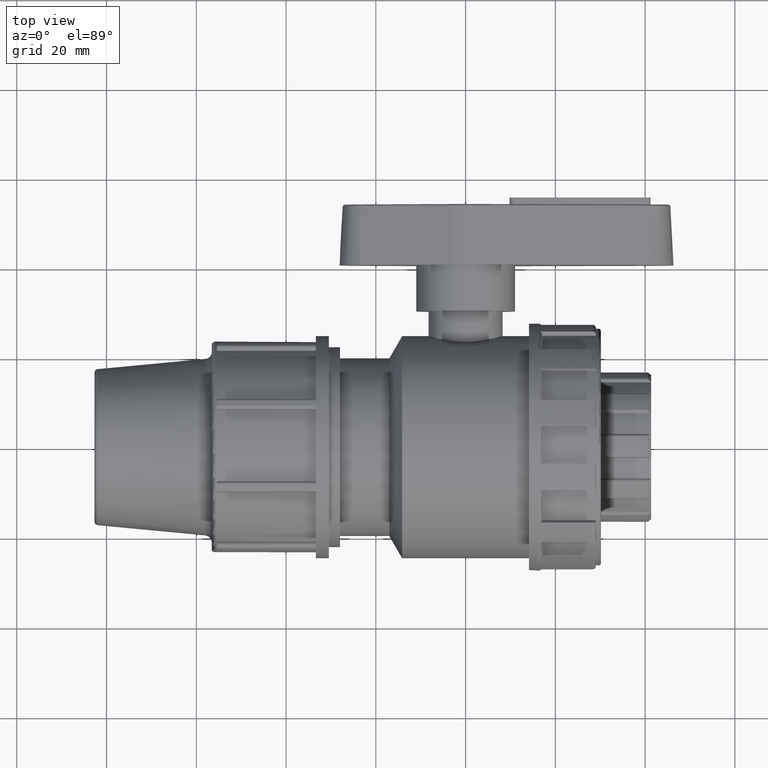
[diagram: clean part render]
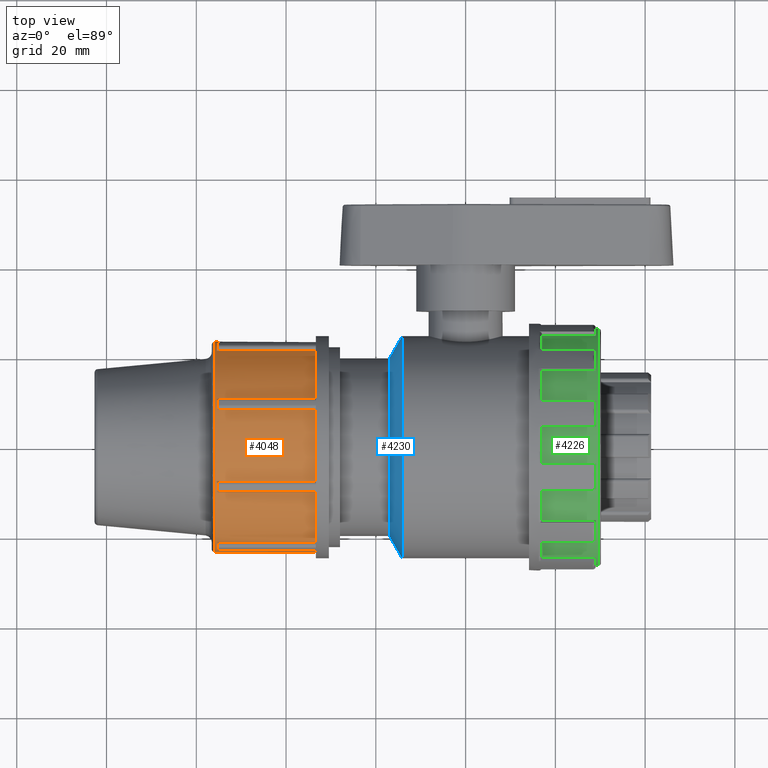
[diagram: same view with three faces highlighted in distinct colors, each labeled with its STEP entity id]
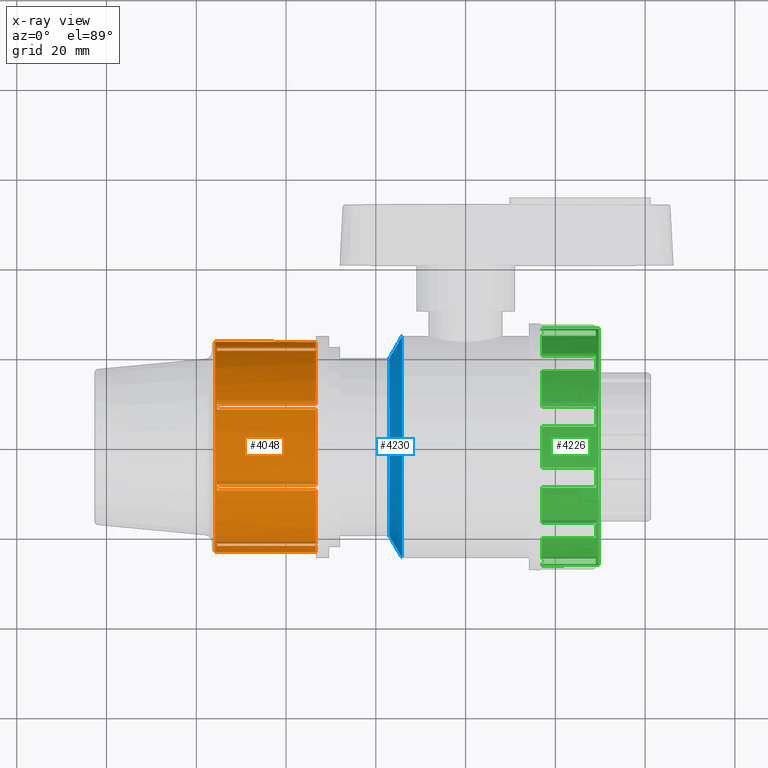
[diagram: x-ray of the same camera — body ghosted, the three highlighted faces saturated]
A machine part, top view with three faces highlighted in distinct colors.
The next image is the same camera in x-ray (body ghosted, the three faces saturated) — at least one of them is partly hidden behind the body in this view.
Their STEP definitions:

[orange] entity #4048 — the highlighted cylindrical surface (bore or boss wall) has radius 23.5125 mm, axis along (1, 0, 0).
#74=FACE_BOUND('',#645,.T.);
#396=FACE_OUTER_BOUND('',#644,.T.);
#644=EDGE_LOOP('',(#2930,#2931,#2932,#2933,#2934,#2935,#2936,#2937,#2938,
#2939,#2940,#2941,#2942,#2943,#2944,#2945,#2946,#2947,#2948,#2949,#2950,
#2951,#2952,#2953,#2954,#2955,#2956,#2957,#2958,#2959,#2960,#2961));
#645=EDGE_LOOP('',(#2962));
#875=LINE('',#6062,#1119);
#879=LINE('',#6122,#1123);
#885=LINE('',#6187,#1129);
#889=LINE('',#6247,#1133);
#895=LINE('',#6312,#1139);
#899=LINE('',#6372,#1143);
#905=LINE('',#6437,#1149);
#909=LINE('',#6497,#1153);
#915=LINE('',#6562,#1159);
#919=LINE('',#6622,#1163);
#925=LINE('',#6687,#1169);
#929=LINE('',#6747,#1173);
#935=LINE('',#6812,#1179);
#939=LINE('',#6872,#1183);
#941=LINE('',#6899,#1185);
#942=LINE('',#6902,#1186);
#1119=VECTOR('',#4761,22.04);
#1123=VECTOR('',#4773,22.04);
#1129=VECTOR('',#4793,22.04);
#1133=VECTOR('',#4805,22.04);
#1139=VECTOR('',#4825,22.04);
#1143=VECTOR('',#4837,22.04);
#1149=VECTOR('',#4857,22.04);
#1153=VECTOR('',#4869,22.04);
#1159=VECTOR('',#4889,22.04);
#1163=VECTOR('',#4901,22.04);
#1169=VECTOR('',#4921,22.04);
#1173=VECTOR('',#4933,22.04);
#1179=VECTOR('',#4953,22.04);
#1183=VECTOR('',#4965,22.04);
#1185=VECTOR('',#5013,22.04);
#1186=VECTOR('',#5016,22.04);
#1360=CIRCLE('',#4246,23.5125);
#1365=CIRCLE('',#4255,23.5125);
#1371=CIRCLE('',#4266,23.5125);
#1377=CIRCLE('',#4277,23.5125);
#1383=CIRCLE('',#4288,23.5125);
#1389=CIRCLE('',#4299,23.5125);
#1395=CIRCLE('',#4310,23.5125);
#1400=CIRCLE('',#4320,23.5125);
#1402=CIRCLE('',#4323,23.5125);
#1404=CIRCLE('',#4326,23.5125);
#1406=CIRCLE('',#4329,23.5125);
#1408=CIRCLE('',#4332,23.5125);
#1410=CIRCLE('',#4335,23.5125);
#1412=CIRCLE('',#4338,23.5125);
#1414=CIRCLE('',#4341,23.5125);
#1415=CIRCLE('',#4342,23.5125);
#1416=CIRCLE('',#4343,23.5125);
#1630=VERTEX_POINT('',#6039);
#1631=VERTEX_POINT('',#6041);
#1634=VERTEX_POINT('',#6060);
#1641=VERTEX_POINT('',#6119);
#1642=VERTEX_POINT('',#6121);
#1645=VERTEX_POINT('',#6140);
#1650=VERTEX_POINT('',#6185);
#1657=VERTEX_POINT('',#6244);
#1658=VERTEX_POINT('',#6246);
#1661=VERTEX_POINT('',#6265);
#1666=VERTEX_POINT('',#6310);
#1673=VERTEX_POINT('',#6369);
#1674=VERTEX_POINT('',#6371);
#1677=VERTEX_POINT('',#6390);
#1682=VERTEX_POINT('',#6435);
#1689=VERTEX_POINT('',#6494);
#1690=VERTEX_POINT('',#6496);
#1693=VERTEX_POINT('',#6515);
#1698=VERTEX_POINT('',#6560);
#1705=VERTEX_POINT('',#6619);
#1706=VERTEX_POINT('',#6621);
#1709=VERTEX_POINT('',#6640);
#1714=VERTEX_POINT('',#6685);
#1721=VERTEX_POINT('',#6744);
#1722=VERTEX_POINT('',#6746);
#1725=VERTEX_POINT('',#6765);
#1730=VERTEX_POINT('',#6810);
#1737=VERTEX_POINT('',#6869);
#1738=VERTEX_POINT('',#6871);
#1739=VERTEX_POINT('',#6896);
#1740=VERTEX_POINT('',#6898);
#1741=VERTEX_POINT('',#6900);
#1742=VERTEX_POINT('',#6903);
#2045=EDGE_CURVE('',#1631,#1630,#1360,.T.);
#2050=EDGE_CURVE('',#1630,#1634,#875,.T.);
#2059=EDGE_CURVE('',#1641,#1642,#879,.T.);
#2064=EDGE_CURVE('',#1641,#1645,#1365,.T.);
#2072=EDGE_CURVE('',#1645,#1650,#885,.T.);
#2081=EDGE_CURVE('',#1657,#1658,#889,.T.);
#2086=EDGE_CURVE('',#1657,#1661,#1371,.T.);
#2094=EDGE_CURVE('',#1661,#1666,#895,.T.);
#2103=EDGE_CURVE('',#1673,#1674,#899,.T.);
#2108=EDGE_CURVE('',#1673,#1677,#1377,.T.);
#2116=EDGE_CURVE('',#1677,#1682,#905,.T.);
#2125=EDGE_CURVE('',#1689,#1690,#909,.T.);
#2130=EDGE_CURVE('',#1689,#1693,#1383,.T.);
#2138=EDGE_CURVE('',#1693,#1698,#915,.T.);
#2147=EDGE_CURVE('',#1705,#1706,#919,.T.);
#2152=EDGE_CURVE('',#1705,#1709,#1389,.T.);
#2160=EDGE_CURVE('',#1709,#1714,#925,.T.);
#2169=EDGE_CURVE('',#1721,#1722,#929,.T.);
#2174=EDGE_CURVE('',#1721,#1725,#1395,.T.);
#2182=EDGE_CURVE('',#1725,#1730,#935,.T.);
#2191=EDGE_CURVE('',#1737,#1738,#939,.T.);
#2193=EDGE_CURVE('',#1634,#1642,#1400,.T.);
#2195=EDGE_CURVE('',#1650,#1658,#1402,.T.);
#2197=EDGE_CURVE('',#1666,#1674,#1404,.T.);
#2199=EDGE_CURVE('',#1682,#1690,#1406,.T.);
#2201=EDGE_CURVE('',#1698,#1706,#1408,.T.);
#2203=EDGE_CURVE('',#1714,#1722,#1410,.T.);
#2205=EDGE_CURVE('',#1730,#1738,#1412,.T.);
#2207=EDGE_CURVE('',#1737,#1739,#1414,.T.);
#2208=EDGE_CURVE('',#1739,#1740,#941,.T.);
#2209=EDGE_CURVE('',#1740,#1741,#1415,.T.);
#2210=EDGE_CURVE('',#1631,#1741,#942,.T.);
#2211=EDGE_CURVE('',#1742,#1742,#1416,.T.);
#2930=ORIENTED_EDGE('',*,*,#2064,.T.);
#2931=ORIENTED_EDGE('',*,*,#2072,.T.);
#2932=ORIENTED_EDGE('',*,*,#2195,.T.);
#2933=ORIENTED_EDGE('',*,*,#2081,.F.);
#2934=ORIENTED_EDGE('',*,*,#2086,.T.);
#2935=ORIENTED_EDGE('',*,*,#2094,.T.);
#2936=ORIENTED_EDGE('',*,*,#2197,.T.);
#2937=ORIENTED_EDGE('',*,*,#2103,.F.);
#2938=ORIENTED_EDGE('',*,*,#2108,.T.);
#2939=ORIENTED_EDGE('',*,*,#2116,.T.);
#2940=ORIENTED_EDGE('',*,*,#2199,.T.);
#2941=ORIENTED_EDGE('',*,*,#2125,.F.);
#2942=ORIENTED_EDGE('',*,*,#2130,.T.);
#2943=ORIENTED_EDGE('',*,*,#2138,.T.);
#2944=ORIENTED_EDGE('',*,*,#2201,.T.);
#2945=ORIENTED_EDGE('',*,*,#2147,.F.);
#2946=ORIENTED_EDGE('',*,*,#2152,.T.);
#2947=ORIENTED_EDGE('',*,*,#2160,.T.);
#2948=ORIENTED_EDGE('',*,*,#2203,.T.);
#2949=ORIENTED_EDGE('',*,*,#2169,.F.);
#2950=ORIENTED_EDGE('',*,*,#2174,.T.);
#2951=ORIENTED_EDGE('',*,*,#2182,.T.);
#2952=ORIENTED_EDGE('',*,*,#2205,.T.);
#2953=ORIENTED_EDGE('',*,*,#2191,.F.);
#2954=ORIENTED_EDGE('',*,*,#2207,.T.);
#2955=ORIENTED_EDGE('',*,*,#2208,.T.);
#2956=ORIENTED_EDGE('',*,*,#2209,.T.);
#2957=ORIENTED_EDGE('',*,*,#2210,.F.);
#2958=ORIENTED_EDGE('',*,*,#2045,.T.);
#2959=ORIENTED_EDGE('',*,*,#2050,.T.);
#2960=ORIENTED_EDGE('',*,*,#2193,.T.);
#2961=ORIENTED_EDGE('',*,*,#2059,.F.);
#2962=ORIENTED_EDGE('',*,*,#2211,.F.);
#3932=CYLINDRICAL_SURFACE('',#4340,23.5125);
#4048=ADVANCED_FACE('',(#396,#74),#3932,.T.);
#4246=AXIS2_PLACEMENT_3D('',#6042,#4753,#4754);
#4255=AXIS2_PLACEMENT_3D('',#6142,#4780,#4781);
#4266=AXIS2_PLACEMENT_3D('',#6267,#4812,#4813);
#4277=AXIS2_PLACEMENT_3D('',#6392,#4844,#4845);
#4288=AXIS2_PLACEMENT_3D('',#6517,#4876,#4877);
#4299=AXIS2_PLACEMENT_3D('',#6642,#4908,#4909);
#4310=AXIS2_PLACEMENT_3D('',#6767,#4940,#4941);
#4320=AXIS2_PLACEMENT_3D('',#6875,#4969,#4970);
#4323=AXIS2_PLACEMENT_3D('',#6878,#4975,#4976);
#4326=AXIS2_PLACEMENT_3D('',#6881,#4981,#4982);
#4329=AXIS2_PLACEMENT_3D('',#6884,#4987,#4988);
#4332=AXIS2_PLACEMENT_3D('',#6887,#4993,#4994);
#4335=AXIS2_PLACEMENT_3D('',#6890,#4999,#5000);
#4338=AXIS2_PLACEMENT_3D('',#6893,#5005,#5006);
#4340=AXIS2_PLACEMENT_3D('',#6895,#5009,#5010);
#4341=AXIS2_PLACEMENT_3D('',#6897,#5011,#5012);
#4342=AXIS2_PLACEMENT_3D('',#6901,#5014,#5015);
#4343=AXIS2_PLACEMENT_3D('',#6904,#5017,#5018);
#4753=DIRECTION('center_axis',(-1.,0.,0.));
#4754=DIRECTION('ref_axis',(0.,0.,-1.));
#4761=DIRECTION('',(1.,0.,0.));
#4773=DIRECTION('',(1.,0.,0.));
#4780=DIRECTION('center_axis',(-1.,0.,0.));
#4781=DIRECTION('ref_axis',(0.,0.,-1.));
#4793=DIRECTION('',(1.,0.,0.));
#4805=DIRECTION('',(1.,0.,0.));
#4812=DIRECTION('center_axis',(-1.,0.,0.));
#4813=DIRECTION('ref_axis',(0.,0.,-1.));
#4825=DIRECTION('',(1.,0.,0.));
#4837=DIRECTION('',(1.,0.,0.));
#4844=DIRECTION('center_axis',(-1.,0.,0.));
#4845=DIRECTION('ref_axis',(0.,0.,-1.));
#4857=DIRECTION('',(1.,0.,0.));
#4869=DIRECTION('',(1.,0.,0.));
#4876=DIRECTION('center_axis',(-1.,0.,0.));
#4877=DIRECTION('ref_axis',(0.,0.,-1.));
#4889=DIRECTION('',(1.,0.,0.));
#4901=DIRECTION('',(1.,0.,0.));
#4908=DIRECTION('center_axis',(-1.,0.,0.));
#4909=DIRECTION('ref_axis',(0.,0.,-1.));
#4921=DIRECTION('',(1.,0.,0.));
#4933=DIRECTION('',(1.,0.,0.));
#4940=DIRECTION('center_axis',(-1.,0.,0.));
#4941=DIRECTION('ref_axis',(0.,0.,-1.));
#4953=DIRECTION('',(1.,0.,0.));
#4965=DIRECTION('',(1.,0.,0.));
#4969=DIRECTION('center_axis',(-1.,0.,0.));
#4970=DIRECTION('ref_axis',(0.,-0.707106781186548,-0.707106781186547));
#4975=DIRECTION('center_axis',(-1.,0.,0.));
#4976=DIRECTION('ref_axis',(0.,-1.,9.44368335672648E-17));
#4981=DIRECTION('center_axis',(-1.,0.,0.));
#4982=DIRECTION('ref_axis',(0.,-0.707106781186547,0.707106781186548));
#4987=DIRECTION('center_axis',(-1.,0.,0.));
#4988=DIRECTION('ref_axis',(0.,9.44368335672648E-17,1.));
#4993=DIRECTION('center_axis',(-1.,0.,0.));
#4994=DIRECTION('ref_axis',(0.,0.707106781186547,0.707106781186547));
#4999=DIRECTION('center_axis',(-1.,0.,0.));
#5000=DIRECTION('ref_axis',(0.,1.,0.));
#5005=DIRECTION('center_axis',(-1.,0.,0.));
#5006=DIRECTION('ref_axis',(0.,0.707106781186547,-0.707106781186547));
#5009=DIRECTION('center_axis',(1.,0.,0.));
#5010=DIRECTION('ref_axis',(0.,0.,-1.));
#5011=DIRECTION('center_axis',(-1.,0.,0.));
#5012=DIRECTION('ref_axis',(0.,0.,-1.));
#5013=DIRECTION('',(1.,0.,0.));
#5014=DIRECTION('center_axis',(-1.,0.,0.));
#5015=DIRECTION('ref_axis',(0.,0.,-1.));
#5016=DIRECTION('',(1.,0.,0.));
#5017=DIRECTION('center_axis',(-1.,0.,0.));
#5018=DIRECTION('ref_axis',(0.,0.940721029240066,0.339181286549703));
#6039=CARTESIAN_POINT('',(-55.4066666666667,21.2794616037402,-10.0011084438149));
#6041=CARTESIAN_POINT('',(-55.4066666666667,22.118703200007,-7.97500000000011));
#6042=CARTESIAN_POINT('Origin',(-55.4066666666667,0.,0.));
#6060=CARTESIAN_POINT('',(-33.3666666666667,21.2794616037402,-10.0011084438149));
#6062=CARTESIAN_POINT('',(-56.5666666666667,21.2794616037402,-10.0011084438149));
#6119=CARTESIAN_POINT('',(-55.4066666666667,10.0011084438147,-21.2794616037403));
#6121=CARTESIAN_POINT('',(-33.3666666666667,10.0011084438147,-21.2794616037403));
#6122=CARTESIAN_POINT('',(-56.5666666666667,10.0011084438147,-21.2794616037403));
#6140=CARTESIAN_POINT('',(-55.4066666666667,7.97499999999988,-22.118703200007));
#6142=CARTESIAN_POINT('Origin',(-55.4066666666667,0.,0.));
#6185=CARTESIAN_POINT('',(-33.3666666666667,7.97499999999988,-22.118703200007));
#6187=CARTESIAN_POINT('',(-56.5666666666667,7.97499999999988,-22.118703200007));
#6244=CARTESIAN_POINT('',(-55.4066666666667,-7.97500000000012,-22.118703200007));
#6246=CARTESIAN_POINT('',(-33.3666666666667,-7.97500000000012,-22.118703200007));
#6247=CARTESIAN_POINT('',(-56.5666666666667,-7.97500000000012,-22.118703200007));
#6265=CARTESIAN_POINT('',(-55.4066666666667,-10.0011084438149,-21.2794616037402));
#6267=CARTESIAN_POINT('Origin',(-55.4066666666667,0.,0.));
#6310=CARTESIAN_POINT('',(-33.3666666666667,-10.0011084438149,-21.2794616037402));
#6312=CARTESIAN_POINT('',(-56.5666666666667,-10.0011084438149,-21.2794616037402));
#6369=CARTESIAN_POINT('',(-55.4066666666667,-21.2794616037403,-10.0011084438147));
#6371=CARTESIAN_POINT('',(-33.3666666666667,-21.2794616037403,-10.0011084438147));
#6372=CARTESIAN_POINT('',(-56.5666666666667,-21.2794616037403,-10.0011084438147));
#6390=CARTESIAN_POINT('',(-55.4066666666667,-22.118703200007,-7.97499999999988));
#6392=CARTESIAN_POINT('Origin',(-55.4066666666667,0.,0.));
#6435=CARTESIAN_POINT('',(-33.3666666666667,-22.118703200007,-7.97499999999988));
#6437=CARTESIAN_POINT('',(-56.5666666666667,-22.118703200007,-7.97499999999988));
#6494=CARTESIAN_POINT('',(-55.4066666666667,-22.118703200007,7.97500000000012));
#6496=CARTESIAN_POINT('',(-33.3666666666667,-22.118703200007,7.97500000000012));
#6497=CARTESIAN_POINT('',(-56.5666666666667,-22.118703200007,7.97500000000012));
#6515=CARTESIAN_POINT('',(-55.4066666666667,-21.2794616037402,10.0011084438149));
#6517=CARTESIAN_POINT('Origin',(-55.4066666666667,0.,0.));
#6560=CARTESIAN_POINT('',(-33.3666666666667,-21.2794616037402,10.0011084438149));
#6562=CARTESIAN_POINT('',(-56.5666666666667,-21.2794616037402,10.0011084438149));
#6619=CARTESIAN_POINT('',(-55.4066666666667,-10.0011084438147,21.2794616037403));
#6621=CARTESIAN_POINT('',(-33.3666666666667,-10.0011084438147,21.2794616037403));
#6622=CARTESIAN_POINT('',(-56.5666666666667,-10.0011084438147,21.2794616037403));
#6640=CARTESIAN_POINT('',(-55.4066666666667,-7.97499999999989,22.118703200007));
#6642=CARTESIAN_POINT('Origin',(-55.4066666666667,0.,0.));
#6685=CARTESIAN_POINT('',(-33.3666666666667,-7.97499999999989,22.118703200007));
#6687=CARTESIAN_POINT('',(-56.5666666666667,-7.97499999999989,22.118703200007));
#6744=CARTESIAN_POINT('',(-55.4066666666667,7.97500000000011,22.118703200007));
#6746=CARTESIAN_POINT('',(-33.3666666666667,7.97500000000011,22.118703200007));
#6747=CARTESIAN_POINT('',(-56.5666666666667,7.97500000000011,22.118703200007));
#6765=CARTESIAN_POINT('',(-55.4066666666667,10.0011084438149,21.2794616037402));
#6767=CARTESIAN_POINT('Origin',(-55.4066666666667,0.,0.));
#6810=CARTESIAN_POINT('',(-33.3666666666667,10.0011084438149,21.2794616037402));
#6812=CARTESIAN_POINT('',(-56.5666666666667,10.0011084438149,21.2794616037402));
#6869=CARTESIAN_POINT('',(-55.4066666666667,21.2794616037403,10.0011084438147));
#6871=CARTESIAN_POINT('',(-33.3666666666667,21.2794616037403,10.0011084438147));
#6872=CARTESIAN_POINT('',(-56.5666666666667,21.2794616037403,10.0011084438147));
#6875=CARTESIAN_POINT('Origin',(-33.3666666666667,0.,0.));
#6878=CARTESIAN_POINT('Origin',(-33.3666666666667,0.,0.));
#6881=CARTESIAN_POINT('Origin',(-33.3666666666667,0.,0.));
#6884=CARTESIAN_POINT('Origin',(-33.3666666666667,0.,0.));
#6887=CARTESIAN_POINT('Origin',(-33.3666666666667,0.,0.));
#6890=CARTESIAN_POINT('Origin',(-33.3666666666667,0.,0.));
#6893=CARTESIAN_POINT('Origin',(-33.3666666666667,0.,0.));
#6895=CARTESIAN_POINT('Origin',(-56.5666666666667,0.,0.));
#6896=CARTESIAN_POINT('',(-55.4066666666667,22.118703200007,7.97499999999989));
#6897=CARTESIAN_POINT('Origin',(-55.4066666666667,0.,0.));
#6898=CARTESIAN_POINT('',(-33.3666666666667,22.118703200007,7.97499999999989));
#6899=CARTESIAN_POINT('',(-56.5666666666667,22.118703200007,7.97499999999989));
#6900=CARTESIAN_POINT('',(-33.3666666666667,22.118703200007,-7.97500000000011));
#6901=CARTESIAN_POINT('Origin',(-33.3666666666667,0.,0.));
#6902=CARTESIAN_POINT('',(-56.5666666666667,22.118703200007,-7.97500000000011));
#6903=CARTESIAN_POINT('',(-55.8166666666667,10.0011084438147,-21.2794616037403));
#6904=CARTESIAN_POINT('Origin',(-55.8166666666667,0.,0.));

[blue] entity #4230 — the highlighted conical surface has half-angle 60 deg.
#31=CONICAL_SURFACE('',#4722,22.275,60.0000000000001);
#98=FACE_BOUND('',#851,.T.);
#578=FACE_OUTER_BOUND('',#850,.T.);
#850=EDGE_LOOP('',(#3898));
#851=EDGE_LOOP('',(#3899));
#1615=CIRCLE('',#4721,24.75);
#1616=CIRCLE('',#4723,19.8);
#2028=VERTEX_POINT('',#8568);
#2029=VERTEX_POINT('',#8571);
#2655=EDGE_CURVE('',#2028,#2028,#1615,.T.);
#2656=EDGE_CURVE('',#2029,#2029,#1616,.T.);
#3898=ORIENTED_EDGE('',*,*,#2656,.F.);
#3899=ORIENTED_EDGE('',*,*,#2655,.T.);
#4230=ADVANCED_FACE('',(#578,#98),#31,.T.);
#4721=AXIS2_PLACEMENT_3D('',#8569,#5944,#5945);
#4722=AXIS2_PLACEMENT_3D('',#8570,#5946,#5947);
#4723=AXIS2_PLACEMENT_3D('',#8572,#5948,#5949);
#5944=DIRECTION('center_axis',(-1.,0.,0.));
#5945=DIRECTION('ref_axis',(0.,0.,1.));
#5946=DIRECTION('center_axis',(1.,0.,0.));
#5947=DIRECTION('ref_axis',(0.,1.,0.));
#5948=DIRECTION('center_axis',(-1.,0.,0.));
#5949=DIRECTION('ref_axis',(0.,0.,1.));
#8568=CARTESIAN_POINT('',(-14.1333333333333,24.75,0.));
#8569=CARTESIAN_POINT('Origin',(-14.1333333333333,0.,0.));
#8570=CARTESIAN_POINT('Origin',(-15.5622752495776,0.,0.));
#8571=CARTESIAN_POINT('',(-16.991217165822,19.8,0.));
#8572=CARTESIAN_POINT('Origin',(-16.991217165822,0.,0.));

[green] entity #4226 — the highlighted cylindrical surface (bore or boss wall) has radius 26.4 mm, axis along (-1, 0, 0).
#93=FACE_BOUND('',#842,.T.);
#574=FACE_OUTER_BOUND('',#841,.T.);
#841=EDGE_LOOP('',(#3842,#3843,#3844,#3845,#3846,#3847,#3848,#3849,#3850,
#3851,#3852,#3853,#3854,#3855,#3856,#3857,#3858,#3859,#3860,#3861,#3862,
#3863,#3864,#3865,#3866,#3867,#3868,#3869,#3870,#3871,#3872,#3873,#3874,
#3875,#3876,#3877,#3878,#3879,#3880,#3881,#3882,#3883,#3884,#3885,#3886,
#3887,#3888,#3889));
#842=EDGE_LOOP('',(#3890));
#1041=LINE('',#8065,#1285);
#1044=LINE('',#8082,#1288);
#1047=LINE('',#8099,#1291);
#1050=LINE('',#8116,#1294);
#1053=LINE('',#8133,#1297);
#1056=LINE('',#8150,#1300);
#1059=LINE('',#8167,#1303);
#1062=LINE('',#8184,#1306);
#1065=LINE('',#8201,#1309);
#1068=LINE('',#8218,#1312);
#1071=LINE('',#8235,#1315);
#1074=LINE('',#8252,#1318);
#1077=LINE('',#8269,#1321);
#1080=LINE('',#8286,#1324);
#1083=LINE('',#8303,#1327);
#1086=LINE('',#8320,#1330);
#1089=LINE('',#8337,#1333);
#1092=LINE('',#8354,#1336);
#1095=LINE('',#8371,#1339);
#1098=LINE('',#8388,#1342);
#1101=LINE('',#8405,#1345);
#1104=LINE('',#8422,#1348);
#1112=LINE('',#8551,#1356);
#1113=LINE('',#8553,#1357);
#1285=VECTOR('',#5671,12.);
#1288=VECTOR('',#5676,12.);
#1291=VECTOR('',#5681,12.);
#1294=VECTOR('',#5686,12.);
#1297=VECTOR('',#5691,12.);
#1300=VECTOR('',#5696,12.);
#1303=VECTOR('',#5701,12.);
#1306=VECTOR('',#5706,12.);
#1309=VECTOR('',#5711,12.);
#1312=VECTOR('',#5716,12.);
#1315=VECTOR('',#5721,12.);
#1318=VECTOR('',#5726,12.);
#1321=VECTOR('',#5731,12.);
#1324=VECTOR('',#5736,12.);
#1327=VECTOR('',#5741,12.);
#1330=VECTOR('',#5746,12.);
#1333=VECTOR('',#5751,12.);
#1336=VECTOR('',#5756,12.);
#1339=VECTOR('',#5761,12.);
#1342=VECTOR('',#5766,12.);
#1345=VECTOR('',#5771,12.);
#1348=VECTOR('',#5776,12.);
#1356=VECTOR('',#5920,12.);
#1357=VECTOR('',#5923,12.);
#1540=CIRCLE('',#4569,26.4);
#1543=CIRCLE('',#4574,26.4);
#1546=CIRCLE('',#4579,26.4);
#1549=CIRCLE('',#4584,26.4);
#1552=CIRCLE('',#4589,26.4);
#1555=CIRCLE('',#4594,26.4);
#1558=CIRCLE('',#4599,26.4);
#1561=CIRCLE('',#4604,26.4);
#1564=CIRCLE('',#4609,26.4);
#1567=CIRCLE('',#4614,26.4);
#1570=CIRCLE('',#4619,26.4);
#1572=CIRCLE('',#4644,26.4);
#1574=CIRCLE('',#4647,26.4);
#1576=CIRCLE('',#4650,26.4);
#1578=CIRCLE('',#4653,26.4);
#1580=CIRCLE('',#4656,26.4);
#1582=CIRCLE('',#4659,26.4);
#1584=CIRCLE('',#4662,26.4);
#1586=CIRCLE('',#4665,26.4);
#1588=CIRCLE('',#4668,26.4);
#1590=CIRCLE('',#4671,26.4);
#1591=CIRCLE('',#4673,26.4);
#1594=CIRCLE('',#4677,26.4);
#1610=CIRCLE('',#4708,26.4);
#1612=CIRCLE('',#4713,26.4);
#1883=VERTEX_POINT('',#7715);
#1884=VERTEX_POINT('',#7717);
#1889=VERTEX_POINT('',#7748);
#1890=VERTEX_POINT('',#7750);
#1895=VERTEX_POINT('',#7781);
#1896=VERTEX_POINT('',#7783);
#1901=VERTEX_POINT('',#7814);
#1902=VERTEX_POINT('',#7816);
#1907=VERTEX_POINT('',#7847);
#1908=VERTEX_POINT('',#7849);
#1913=VERTEX_POINT('',#7880);
#1914=VERTEX_POINT('',#7882);
#1919=VERTEX_POINT('',#7913);
#1920=VERTEX_POINT('',#7915);
#1925=VERTEX_POINT('',#7946);
#1926=VERTEX_POINT('',#7948);
#1931=VERTEX_POINT('',#7979);
#1932=VERTEX_POINT('',#7981);
#1937=VERTEX_POINT('',#8012);
#1938=VERTEX_POINT('',#8014);
#1943=VERTEX_POINT('',#8045);
#1944=VERTEX_POINT('',#8047);
#1947=VERTEX_POINT('',#8063);
#1950=VERTEX_POINT('',#8081);
#1953=VERTEX_POINT('',#8097);
#1956=VERTEX_POINT('',#8115);
#1959=VERTEX_POINT('',#8131);
#1962=VERTEX_POINT('',#8149);
#1965=VERTEX_POINT('',#8165);
#1968=VERTEX_POINT('',#8183);
#1971=VERTEX_POINT('',#8199);
#1974=VERTEX_POINT('',#8217);
#1977=VERTEX_POINT('',#8233);
#1980=VERTEX_POINT('',#8251);
#1983=VERTEX_POINT('',#8267);
#1986=VERTEX_POINT('',#8285);
#1989=VERTEX_POINT('',#8301);
#1992=VERTEX_POINT('',#8319);
#1995=VERTEX_POINT('',#8335);
#1998=VERTEX_POINT('',#8353);
#2001=VERTEX_POINT('',#8369);
#2004=VERTEX_POINT('',#8387);
#2007=VERTEX_POINT('',#8403);
#2010=VERTEX_POINT('',#8421);
#2012=VERTEX_POINT('',#8427);
#2013=VERTEX_POINT('',#8458);
#2022=VERTEX_POINT('',#8545);
#2023=VERTEX_POINT('',#8547);
#2025=VERTEX_POINT('',#8557);
#2439=EDGE_CURVE('',#1884,#1883,#1540,.T.);
#2446=EDGE_CURVE('',#1890,#1889,#1543,.T.);
#2453=EDGE_CURVE('',#1896,#1895,#1546,.T.);
#2460=EDGE_CURVE('',#1902,#1901,#1549,.T.);
#2467=EDGE_CURVE('',#1908,#1907,#1552,.T.);
#2474=EDGE_CURVE('',#1914,#1913,#1555,.T.);
#2481=EDGE_CURVE('',#1920,#1919,#1558,.T.);
#2488=EDGE_CURVE('',#1926,#1925,#1561,.T.);
#2495=EDGE_CURVE('',#1932,#1931,#1564,.T.);
#2502=EDGE_CURVE('',#1938,#1937,#1567,.T.);
#2509=EDGE_CURVE('',#1944,#1943,#1570,.T.);
#2513=EDGE_CURVE('',#1947,#1883,#1041,.T.);
#2517=EDGE_CURVE('',#1950,#1884,#1044,.T.);
#2521=EDGE_CURVE('',#1953,#1889,#1047,.T.);
#2525=EDGE_CURVE('',#1956,#1890,#1050,.T.);
#2529=EDGE_CURVE('',#1959,#1895,#1053,.T.);
#2533=EDGE_CURVE('',#1962,#1896,#1056,.T.);
#2537=EDGE_CURVE('',#1965,#1901,#1059,.T.);
#2541=EDGE_CURVE('',#1968,#1902,#1062,.T.);
#2545=EDGE_CURVE('',#1971,#1907,#1065,.T.);
#2549=EDGE_CURVE('',#1974,#1908,#1068,.T.);
#2553=EDGE_CURVE('',#1977,#1913,#1071,.T.);
#2557=EDGE_CURVE('',#1980,#1914,#1074,.T.);
#2561=EDGE_CURVE('',#1983,#1919,#1077,.T.);
#2565=EDGE_CURVE('',#1986,#1920,#1080,.T.);
#2569=EDGE_CURVE('',#1989,#1925,#1083,.T.);
#2573=EDGE_CURVE('',#1992,#1926,#1086,.T.);
#2577=EDGE_CURVE('',#1995,#1931,#1089,.T.);
#2581=EDGE_CURVE('',#1998,#1932,#1092,.T.);
#2585=EDGE_CURVE('',#2001,#1937,#1095,.T.);
#2589=EDGE_CURVE('',#2004,#1938,#1098,.T.);
#2593=EDGE_CURVE('',#2007,#1943,#1101,.T.);
#2597=EDGE_CURVE('',#2010,#1944,#1104,.T.);
#2601=EDGE_CURVE('',#2012,#2007,#1572,.T.);
#2603=EDGE_CURVE('',#2010,#2001,#1574,.T.);
#2605=EDGE_CURVE('',#2004,#1995,#1576,.T.);
#2607=EDGE_CURVE('',#1998,#1989,#1578,.T.);
#2609=EDGE_CURVE('',#1992,#1983,#1580,.T.);
#2611=EDGE_CURVE('',#1986,#1977,#1582,.T.);
#2613=EDGE_CURVE('',#1980,#1971,#1584,.T.);
#2615=EDGE_CURVE('',#1974,#1965,#1586,.T.);
#2617=EDGE_CURVE('',#1968,#1959,#1588,.T.);
#2619=EDGE_CURVE('',#1962,#1953,#1590,.T.);
#2620=EDGE_CURVE('',#1950,#2013,#1591,.T.);
#2624=EDGE_CURVE('',#1956,#1947,#1594,.T.);
#2647=EDGE_CURVE('',#2023,#2022,#1610,.T.);
#2649=EDGE_CURVE('',#2013,#2022,#1112,.T.);
#2650=EDGE_CURVE('',#2012,#2023,#1113,.T.);
#2652=EDGE_CURVE('',#2025,#2025,#1612,.T.);
#3842=ORIENTED_EDGE('',*,*,#2601,.F.);
#3843=ORIENTED_EDGE('',*,*,#2650,.T.);
#3844=ORIENTED_EDGE('',*,*,#2647,.T.);
#3845=ORIENTED_EDGE('',*,*,#2649,.F.);
#3846=ORIENTED_EDGE('',*,*,#2620,.F.);
#3847=ORIENTED_EDGE('',*,*,#2517,.T.);
#3848=ORIENTED_EDGE('',*,*,#2439,.T.);
#3849=ORIENTED_EDGE('',*,*,#2513,.F.);
#3850=ORIENTED_EDGE('',*,*,#2624,.F.);
#3851=ORIENTED_EDGE('',*,*,#2525,.T.);
#3852=ORIENTED_EDGE('',*,*,#2446,.T.);
#3853=ORIENTED_EDGE('',*,*,#2521,.F.);
#3854=ORIENTED_EDGE('',*,*,#2619,.F.);
#3855=ORIENTED_EDGE('',*,*,#2533,.T.);
#3856=ORIENTED_EDGE('',*,*,#2453,.T.);
#3857=ORIENTED_EDGE('',*,*,#2529,.F.);
#3858=ORIENTED_EDGE('',*,*,#2617,.F.);
#3859=ORIENTED_EDGE('',*,*,#2541,.T.);
#3860=ORIENTED_EDGE('',*,*,#2460,.T.);
#3861=ORIENTED_EDGE('',*,*,#2537,.F.);
#3862=ORIENTED_EDGE('',*,*,#2615,.F.);
#3863=ORIENTED_EDGE('',*,*,#2549,.T.);
#3864=ORIENTED_EDGE('',*,*,#2467,.T.);
#3865=ORIENTED_EDGE('',*,*,#2545,.F.);
#3866=ORIENTED_EDGE('',*,*,#2613,.F.);
#3867=ORIENTED_EDGE('',*,*,#2557,.T.);
#3868=ORIENTED_EDGE('',*,*,#2474,.T.);
#3869=ORIENTED_EDGE('',*,*,#2553,.F.);
#3870=ORIENTED_EDGE('',*,*,#2611,.F.);
#3871=ORIENTED_EDGE('',*,*,#2565,.T.);
#3872=ORIENTED_EDGE('',*,*,#2481,.T.);
#3873=ORIENTED_EDGE('',*,*,#2561,.F.);
#3874=ORIENTED_EDGE('',*,*,#2609,.F.);
#3875=ORIENTED_EDGE('',*,*,#2573,.T.);
#3876=ORIENTED_EDGE('',*,*,#2488,.T.);
#3877=ORIENTED_EDGE('',*,*,#2569,.F.);
#3878=ORIENTED_EDGE('',*,*,#2607,.F.);
#3879=ORIENTED_EDGE('',*,*,#2581,.T.);
#3880=ORIENTED_EDGE('',*,*,#2495,.T.);
#3881=ORIENTED_EDGE('',*,*,#2577,.F.);
#3882=ORIENTED_EDGE('',*,*,#2605,.F.);
#3883=ORIENTED_EDGE('',*,*,#2589,.T.);
#3884=ORIENTED_EDGE('',*,*,#2502,.T.);
#3885=ORIENTED_EDGE('',*,*,#2585,.F.);
#3886=ORIENTED_EDGE('',*,*,#2603,.F.);
#3887=ORIENTED_EDGE('',*,*,#2597,.T.);
#3888=ORIENTED_EDGE('',*,*,#2509,.T.);
#3889=ORIENTED_EDGE('',*,*,#2593,.F.);
#3890=ORIENTED_EDGE('',*,*,#2652,.F.);
#3986=CYLINDRICAL_SURFACE('',#4715,26.4);
#4226=ADVANCED_FACE('',(#574,#93),#3986,.T.);
#4569=AXIS2_PLACEMENT_3D('',#7718,#5545,#5546);
#4574=AXIS2_PLACEMENT_3D('',#7751,#5557,#5558);
#4579=AXIS2_PLACEMENT_3D('',#7784,#5569,#5570);
#4584=AXIS2_PLACEMENT_3D('',#7817,#5581,#5582);
#4589=AXIS2_PLACEMENT_3D('',#7850,#5593,#5594);
#4594=AXIS2_PLACEMENT_3D('',#7883,#5605,#5606);
#4599=AXIS2_PLACEMENT_3D('',#7916,#5617,#5618);
#4604=AXIS2_PLACEMENT_3D('',#7949,#5629,#5630);
#4609=AXIS2_PLACEMENT_3D('',#7982,#5641,#5642);
#4614=AXIS2_PLACEMENT_3D('',#8015,#5653,#5654);
#4619=AXIS2_PLACEMENT_3D('',#8048,#5665,#5666);
#4644=AXIS2_PLACEMENT_3D('',#8429,#5783,#5784);
#4647=AXIS2_PLACEMENT_3D('',#8432,#5789,#5790);
#4650=AXIS2_PLACEMENT_3D('',#8435,#5795,#5796);
#4653=AXIS2_PLACEMENT_3D('',#8438,#5801,#5802);
#4656=AXIS2_PLACEMENT_3D('',#8441,#5807,#5808);
#4659=AXIS2_PLACEMENT_3D('',#8444,#5813,#5814);
#4662=AXIS2_PLACEMENT_3D('',#8447,#5819,#5820);
#4665=AXIS2_PLACEMENT_3D('',#8450,#5825,#5826);
#4668=AXIS2_PLACEMENT_3D('',#8453,#5831,#5832);
#4671=AXIS2_PLACEMENT_3D('',#8456,#5837,#5838);
#4673=AXIS2_PLACEMENT_3D('',#8459,#5841,#5842);
#4677=AXIS2_PLACEMENT_3D('',#8465,#5850,#5851);
#4708=AXIS2_PLACEMENT_3D('',#8548,#5915,#5916);
#4713=AXIS2_PLACEMENT_3D('',#8558,#5928,#5929);
#4715=AXIS2_PLACEMENT_3D('',#8560,#5932,#5933);
#5545=DIRECTION('center_axis',(1.,0.,0.));
#5546=DIRECTION('ref_axis',(0.,-0.500000000000001,0.866025403784438));
#5557=DIRECTION('center_axis',(1.,0.,0.));
#5558=DIRECTION('ref_axis',(0.,-0.866025403784439,0.499999999999999));
#5569=DIRECTION('center_axis',(1.,0.,0.));
#5570=DIRECTION('ref_axis',(0.,-1.,-2.52323414687536E-16));
#5581=DIRECTION('center_axis',(1.,0.,0.));
#5582=DIRECTION('ref_axis',(0.,-0.866025403784438,-0.500000000000001));
#5593=DIRECTION('center_axis',(1.,0.,0.));
#5594=DIRECTION('ref_axis',(0.,-0.5,-0.866025403784439));
#5605=DIRECTION('center_axis',(1.,0.,0.));
#5606=DIRECTION('ref_axis',(0.,1.6821560979169E-16,-1.));
#5617=DIRECTION('center_axis',(1.,0.,0.));
#5618=DIRECTION('ref_axis',(0.,0.5,-0.866025403784438));
#5629=DIRECTION('center_axis',(1.,0.,0.));
#5630=DIRECTION('ref_axis',(0.,0.866025403784439,-0.5));
#5641=DIRECTION('center_axis',(1.,0.,0.));
#5642=DIRECTION('ref_axis',(0.,1.,8.41078048958452E-17));
#5653=DIRECTION('center_axis',(1.,0.,0.));
#5654=DIRECTION('ref_axis',(0.,0.866025403784439,0.5));
#5665=DIRECTION('center_axis',(1.,0.,0.));
#5666=DIRECTION('ref_axis',(0.,0.5,0.866025403784439));
#5671=DIRECTION('',(-1.,0.,0.));
#5676=DIRECTION('',(-1.,0.,0.));
#5681=DIRECTION('',(-1.,0.,0.));
#5686=DIRECTION('',(-1.,0.,0.));
#5691=DIRECTION('',(-1.,0.,0.));
#5696=DIRECTION('',(-1.,0.,0.));
#5701=DIRECTION('',(-1.,0.,0.));
#5706=DIRECTION('',(-1.,0.,0.));
#5711=DIRECTION('',(-1.,0.,0.));
#5716=DIRECTION('',(-1.,0.,0.));
#5721=DIRECTION('',(-1.,0.,0.));
#5726=DIRECTION('',(-1.,0.,0.));
#5731=DIRECTION('',(-1.,0.,0.));
#5736=DIRECTION('',(-1.,0.,0.));
#5741=DIRECTION('',(-1.,0.,0.));
#5746=DIRECTION('',(-1.,0.,0.));
#5751=DIRECTION('',(-1.,0.,0.));
#5756=DIRECTION('',(-1.,0.,0.));
#5761=DIRECTION('',(-1.,0.,0.));
#5766=DIRECTION('',(-1.,0.,0.));
#5771=DIRECTION('',(-1.,0.,0.));
#5776=DIRECTION('',(-1.,0.,0.));
#5783=DIRECTION('center_axis',(-1.,0.,0.));
#5784=DIRECTION('ref_axis',(0.,0.,1.));
#5789=DIRECTION('center_axis',(-1.,0.,0.));
#5790=DIRECTION('ref_axis',(0.,0.,1.));
#5795=DIRECTION('center_axis',(-1.,0.,0.));
#5796=DIRECTION('ref_axis',(0.,0.,1.));
#5801=DIRECTION('center_axis',(-1.,0.,0.));
#5802=DIRECTION('ref_axis',(0.,0.,1.));
#5807=DIRECTION('center_axis',(-1.,0.,0.));
#5808=DIRECTION('ref_axis',(0.,0.,1.));
#5813=DIRECTION('center_axis',(-1.,0.,0.));
#5814=DIRECTION('ref_axis',(0.,0.,1.));
#5819=DIRECTION('center_axis',(-1.,0.,0.));
#5820=DIRECTION('ref_axis',(0.,0.,1.));
#5825=DIRECTION('center_axis',(-1.,0.,0.));
#5826=DIRECTION('ref_axis',(0.,0.,1.));
#5831=DIRECTION('center_axis',(-1.,0.,0.));
#5832=DIRECTION('ref_axis',(0.,0.,1.));
#5837=DIRECTION('center_axis',(-1.,0.,0.));
#5838=DIRECTION('ref_axis',(0.,0.,1.));
#5841=DIRECTION('center_axis',(-1.,0.,0.));
#5842=DIRECTION('ref_axis',(0.,0.,1.));
#5850=DIRECTION('center_axis',(-1.,0.,0.));
#5851=DIRECTION('ref_axis',(0.,0.,1.));
#5915=DIRECTION('center_axis',(1.,0.,0.));
#5916=DIRECTION('ref_axis',(0.,0.,1.));
#5920=DIRECTION('',(-1.,0.,0.));
#5923=DIRECTION('',(-1.,0.,0.));
#5928=DIRECTION('center_axis',(1.,0.,0.));
#5929=DIRECTION('ref_axis',(0.,-1.,-1.83697019872103E-16));
#5932=DIRECTION('center_axis',(-1.,0.,0.));
#5933=DIRECTION('ref_axis',(0.,1.,0.));
#7715=CARTESIAN_POINT('',(17.0333333333333,-20.5197558937321,-16.6102263097661));
#7717=CARTESIAN_POINT('',(17.0333333333333,-24.6447558937321,-9.46551672854447));
#7718=CARTESIAN_POINT('Origin',(17.0333333333333,0.,0.));
#7748=CARTESIAN_POINT('',(17.0333333333333,-9.46551672854443,-24.6447558937321));
#7750=CARTESIAN_POINT('',(17.0333333333333,-16.6102263097661,-20.5197558937322));
#7751=CARTESIAN_POINT('Origin',(17.0333333333333,0.,0.));
#7781=CARTESIAN_POINT('',(17.0333333333333,4.12500000000001,-26.0757430383105));
#7783=CARTESIAN_POINT('',(17.0333333333333,-4.12499999999999,-26.0757430383105));
#7784=CARTESIAN_POINT('Origin',(17.0333333333333,0.,0.));
#7814=CARTESIAN_POINT('',(17.0333333333333,16.6102263097661,-20.5197558937321));
#7816=CARTESIAN_POINT('',(17.0333333333333,9.46551672854447,-24.6447558937321));
#7817=CARTESIAN_POINT('Origin',(17.0333333333333,0.,0.));
#7847=CARTESIAN_POINT('',(17.0333333333333,24.6447558937321,-9.46551672854445));
#7849=CARTESIAN_POINT('',(17.0333333333333,20.5197558937321,-16.6102263097661));
#7850=CARTESIAN_POINT('Origin',(17.0333333333333,0.,0.));
#7880=CARTESIAN_POINT('',(17.0333333333333,26.0757430383105,4.125));
#7882=CARTESIAN_POINT('',(17.0333333333333,26.0757430383105,-4.125));
#7883=CARTESIAN_POINT('Origin',(17.0333333333333,0.,0.));
#7913=CARTESIAN_POINT('',(17.0333333333333,20.5197558937321,16.6102263097661));
#7915=CARTESIAN_POINT('',(17.0333333333333,24.6447558937321,9.46551672854446));
#7916=CARTESIAN_POINT('Origin',(17.0333333333333,0.,0.));
#7946=CARTESIAN_POINT('',(17.0333333333333,9.46551672854445,24.6447558937321));
#7948=CARTESIAN_POINT('',(17.0333333333333,16.6102263097661,20.5197558937321));
#7949=CARTESIAN_POINT('Origin',(17.0333333333333,0.,0.));
#7979=CARTESIAN_POINT('',(17.0333333333333,-4.125,26.0757430383105));
#7981=CARTESIAN_POINT('',(17.0333333333333,4.125,26.0757430383105));
#7982=CARTESIAN_POINT('Origin',(17.0333333333333,0.,0.));
#8012=CARTESIAN_POINT('',(17.0333333333333,-16.6102263097661,20.5197558937321));
#8014=CARTESIAN_POINT('',(17.0333333333333,-9.46551672854446,24.6447558937321));
#8015=CARTESIAN_POINT('Origin',(17.0333333333333,0.,0.));
#8045=CARTESIAN_POINT('',(17.0333333333333,-24.6447558937321,9.46551672854445));
#8047=CARTESIAN_POINT('',(17.0333333333333,-20.5197558937321,16.6102263097661));
#8048=CARTESIAN_POINT('Origin',(17.0333333333333,0.,0.));
#8063=CARTESIAN_POINT('',(29.0333333333333,-20.5197558937321,-16.6102263097661));
#8065=CARTESIAN_POINT('',(29.0333333333333,-20.5197558937321,-16.6102263097661));
#8081=CARTESIAN_POINT('',(29.0333333333333,-24.6447558937321,-9.46551672854447));
#8082=CARTESIAN_POINT('',(29.0333333333333,-24.6447558937321,-9.46551672854447));
#8097=CARTESIAN_POINT('',(29.0333333333333,-9.46551672854443,-24.6447558937321));
#8099=CARTESIAN_POINT('',(29.0333333333333,-9.46551672854443,-24.6447558937321));
#8115=CARTESIAN_POINT('',(29.0333333333333,-16.6102263097661,-20.5197558937322));
#8116=CARTESIAN_POINT('',(29.0333333333333,-16.6102263097661,-20.5197558937322));
#8131=CARTESIAN_POINT('',(29.0333333333333,4.12500000000001,-26.0757430383105));
#8133=CARTESIAN_POINT('',(29.0333333333333,4.12500000000001,-26.0757430383105));
#8149=CARTESIAN_POINT('',(29.0333333333333,-4.12499999999999,-26.0757430383105));
#8150=CARTESIAN_POINT('',(29.0333333333333,-4.12499999999999,-26.0757430383105));
#8165=CARTESIAN_POINT('',(29.0333333333333,16.6102263097661,-20.5197558937321));
#8167=CARTESIAN_POINT('',(29.0333333333333,16.6102263097661,-20.5197558937321));
#8183=CARTESIAN_POINT('',(29.0333333333333,9.46551672854447,-24.6447558937321));
#8184=CARTESIAN_POINT('',(29.0333333333333,9.46551672854447,-24.6447558937321));
#8199=CARTESIAN_POINT('',(29.0333333333333,24.6447558937321,-9.46551672854445));
#8201=CARTESIAN_POINT('',(29.0333333333333,24.6447558937321,-9.46551672854445));
#8217=CARTESIAN_POINT('',(29.0333333333333,20.5197558937321,-16.6102263097661));
#8218=CARTESIAN_POINT('',(29.0333333333333,20.5197558937321,-16.6102263097661));
#8233=CARTESIAN_POINT('',(29.0333333333333,26.0757430383105,4.125));
#8235=CARTESIAN_POINT('',(29.0333333333333,26.0757430383105,4.125));
#8251=CARTESIAN_POINT('',(29.0333333333333,26.0757430383105,-4.125));
#8252=CARTESIAN_POINT('',(29.0333333333333,26.0757430383105,-4.125));
#8267=CARTESIAN_POINT('',(29.0333333333333,20.5197558937321,16.6102263097661));
#8269=CARTESIAN_POINT('',(29.0333333333333,20.5197558937321,16.6102263097661));
#8285=CARTESIAN_POINT('',(29.0333333333333,24.6447558937321,9.46551672854446));
#8286=CARTESIAN_POINT('',(29.0333333333333,24.6447558937321,9.46551672854446));
#8301=CARTESIAN_POINT('',(29.0333333333333,9.46551672854445,24.6447558937321));
#8303=CARTESIAN_POINT('',(29.0333333333333,9.46551672854445,24.6447558937321));
#8319=CARTESIAN_POINT('',(29.0333333333333,16.6102263097661,20.5197558937321));
#8320=CARTESIAN_POINT('',(29.0333333333333,16.6102263097661,20.5197558937321));
#8335=CARTESIAN_POINT('',(29.0333333333333,-4.125,26.0757430383105));
#8337=CARTESIAN_POINT('',(29.0333333333333,-4.125,26.0757430383105));
#8353=CARTESIAN_POINT('',(29.0333333333333,4.125,26.0757430383105));
#8354=CARTESIAN_POINT('',(29.0333333333333,4.125,26.0757430383105));
#8369=CARTESIAN_POINT('',(29.0333333333333,-16.6102263097661,20.5197558937321));
#8371=CARTESIAN_POINT('',(29.0333333333333,-16.6102263097661,20.5197558937321));
#8387=CARTESIAN_POINT('',(29.0333333333333,-9.46551672854446,24.6447558937321));
#8388=CARTESIAN_POINT('',(29.0333333333333,-9.46551672854446,24.6447558937321));
#8403=CARTESIAN_POINT('',(29.0333333333333,-24.6447558937321,9.46551672854445));
#8405=CARTESIAN_POINT('',(29.0333333333333,-24.6447558937321,9.46551672854445));
#8421=CARTESIAN_POINT('',(29.0333333333333,-20.5197558937321,16.6102263097661));
#8422=CARTESIAN_POINT('',(29.0333333333333,-20.5197558937321,16.6102263097661));
#8427=CARTESIAN_POINT('',(29.0333333333333,-26.0757430383105,4.125));
#8429=CARTESIAN_POINT('Origin',(29.0333333333333,0.,0.));
#8432=CARTESIAN_POINT('Origin',(29.0333333333333,0.,0.));
#8435=CARTESIAN_POINT('Origin',(29.0333333333333,0.,0.));
#8438=CARTESIAN_POINT('Origin',(29.0333333333333,0.,0.));
#8441=CARTESIAN_POINT('Origin',(29.0333333333333,0.,0.));
#8444=CARTESIAN_POINT('Origin',(29.0333333333333,0.,0.));
#8447=CARTESIAN_POINT('Origin',(29.0333333333333,0.,0.));
#8450=CARTESIAN_POINT('Origin',(29.0333333333333,0.,0.));
#8453=CARTESIAN_POINT('Origin',(29.0333333333333,0.,0.));
#8456=CARTESIAN_POINT('Origin',(29.0333333333333,0.,0.));
#8458=CARTESIAN_POINT('',(29.0333333333333,-26.0757430383105,-4.125));
#8459=CARTESIAN_POINT('Origin',(29.0333333333333,0.,0.));
#8465=CARTESIAN_POINT('Origin',(29.0333333333333,0.,0.));
#8545=CARTESIAN_POINT('',(17.0333333333333,-26.0757430383105,-4.125));
#8547=CARTESIAN_POINT('',(17.0333333333333,-26.0757430383105,4.125));
#8548=CARTESIAN_POINT('Origin',(17.0333333333333,0.,0.));
#8551=CARTESIAN_POINT('',(29.0333333333333,-26.0757430383105,-4.125));
#8553=CARTESIAN_POINT('',(29.0333333333333,-26.0757430383105,4.125));
#8557=CARTESIAN_POINT('',(29.6509933333333,26.4,8.08266887437253E-15));
#8558=CARTESIAN_POINT('Origin',(29.6509933333333,0.,0.));
#8560=CARTESIAN_POINT('Origin',(29.5833333333333,0.,0.));